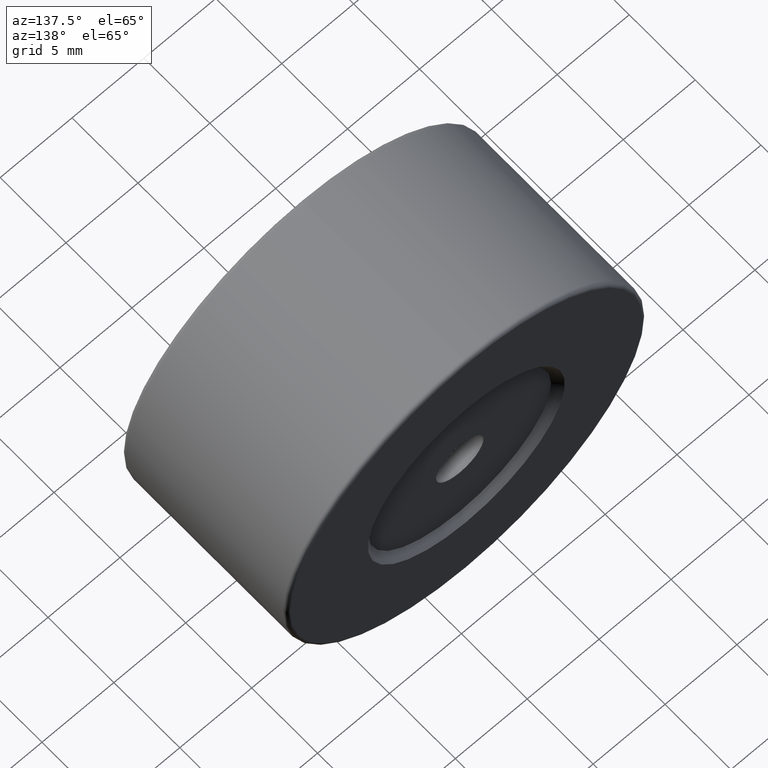
[diagram: clean part render]
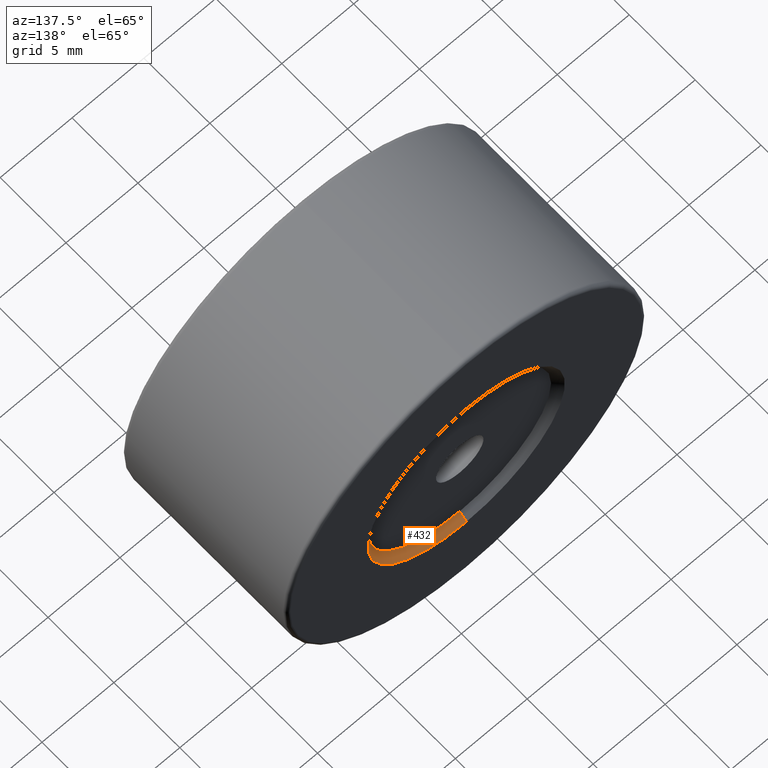
[diagram: same view with one face highlighted and labeled with its STEP entity id]
A machine part, auxiliary view. The second image highlights one B-rep face of the part: STEP entity #432.
In plain terms, the highlighted conical surface has half-angle 45 deg.
Its self-contained STEP definition (entity closure, byte-faithful):
#2 = AXIS2_PLACEMENT_3D ( 'NONE', #569, #575, #212 ) ;
#7 = CARTESIAN_POINT ( 'NONE',  ( -22.50520183104453409, 7.148252184769388506, 43.64999999999999858 ) ) ;
#23 = VERTEX_POINT ( 'NONE', #7 ) ;
#55 = LINE ( 'NONE', #234, #504 ) ;
#75 = ORIENTED_EDGE ( 'NONE', *, *, #413, .F. ) ;
#97 = EDGE_CURVE ( 'NONE', #436, #23, #248, .T. ) ;
#114 = VERTEX_POINT ( 'NONE', #352 ) ;
#131 = CARTESIAN_POINT ( 'NONE',  ( -22.50520183104453409, 7.148252184769388506, 50.00000000000000000 ) ) ;
#148 = DIRECTION ( 'NONE',  ( 0.0000000000000000000, 1.000000000000000000, 0.0000000000000000000 ) ) ;
#175 = EDGE_CURVE ( 'NONE', #114, #446, #275, .T. ) ;
#192 = DIRECTION ( 'NONE',  ( 0.0000000000000000000, 0.0000000000000000000, 1.000000000000000000 ) ) ;
#212 = DIRECTION ( 'NONE',  ( 0.0000000000000000000, 0.0000000000000000000, 1.000000000000000000 ) ) ;
#234 = CARTESIAN_POINT ( 'NONE',  ( -22.50520183104453409, 7.148252184769377848, 56.35000000000000142 ) ) ;
#237 = CARTESIAN_POINT ( 'NONE',  ( -22.50520183104453409, 7.648252184769388506, 56.85000000000000853 ) ) ;
#248 = CIRCLE ( 'NONE', #514, 6.350000000000001421 ) ;
#275 = CIRCLE ( 'NONE', #2, 6.850000000000008527 ) ;
#281 = DIRECTION ( 'NONE',  ( 8.659560562354926695E-17, 0.7071067811865482389, -0.7071067811865469066 ) ) ;
#310 = DIRECTION ( 'NONE',  ( 0.0000000000000000000, 1.000000000000000000, 0.0000000000000000000 ) ) ;
#315 = VECTOR ( 'NONE', #281, 999.9999999999998863 ) ;
#348 = ORIENTED_EDGE ( 'NONE', *, *, #97, .F. ) ;
#352 = CARTESIAN_POINT ( 'NONE',  ( -22.50520183104453409, 7.648252184769388506, 43.14999999999999147 ) ) ;
#353 = DIRECTION ( 'NONE',  ( 0.0000000000000000000, 0.0000000000000000000, 1.000000000000000000 ) ) ;
#371 = CARTESIAN_POINT ( 'NONE',  ( -22.50520183104453409, 7.148252184769388506, 56.35000000000000142 ) ) ;
#413 = EDGE_CURVE ( 'NONE', #23, #114, #501, .T. ) ;
#414 = EDGE_CURVE ( 'NONE', #436, #446, #55, .T. ) ;
#415 = FACE_OUTER_BOUND ( 'NONE', #468, .T. ) ;
#416 = CARTESIAN_POINT ( 'NONE',  ( -22.50520183104453409, 7.148252184769377848, 50.00000000000000000 ) ) ;
#419 = CARTESIAN_POINT ( 'NONE',  ( -22.50520183104453409, 7.148252184769377848, 43.64999999999999858 ) ) ;
#432 = ADVANCED_FACE ( 'NONE', ( #415 ), #433, .F. ) ;
#433 = CONICAL_SURFACE ( 'NONE', #571, 6.350000000000001421, 0.7853981633974473908 ) ;
#436 = VERTEX_POINT ( 'NONE', #371 ) ;
#446 = VERTEX_POINT ( 'NONE', #237 ) ;
#468 = EDGE_LOOP ( 'NONE', ( #75, #348, #558, #511 ) ) ;
#501 = LINE ( 'NONE', #419, #315 ) ;
#504 = VECTOR ( 'NONE', #549, 999.9999999999998863 ) ;
#511 = ORIENTED_EDGE ( 'NONE', *, *, #175, .F. ) ;
#514 = AXIS2_PLACEMENT_3D ( 'NONE', #131, #310, #353 ) ;
#549 = DIRECTION ( 'NONE',  ( 0.0000000000000000000, 0.7071067811865482389, 0.7071067811865469066 ) ) ;
#558 = ORIENTED_EDGE ( 'NONE', *, *, #414, .T. ) ;
#569 = CARTESIAN_POINT ( 'NONE',  ( -22.50520183104453409, 7.648252184769388506, 50.00000000000000000 ) ) ;
#571 = AXIS2_PLACEMENT_3D ( 'NONE', #416, #148, #192 ) ;
#575 = DIRECTION ( 'NONE',  ( -0.0000000000000000000, -1.000000000000000000, -0.0000000000000000000 ) ) ;